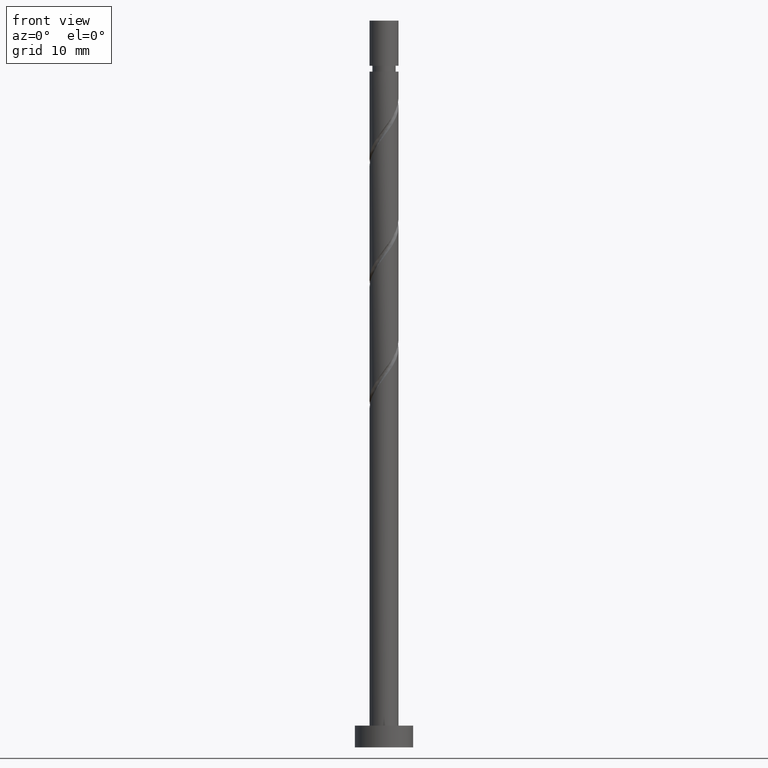
[diagram: clean part render]
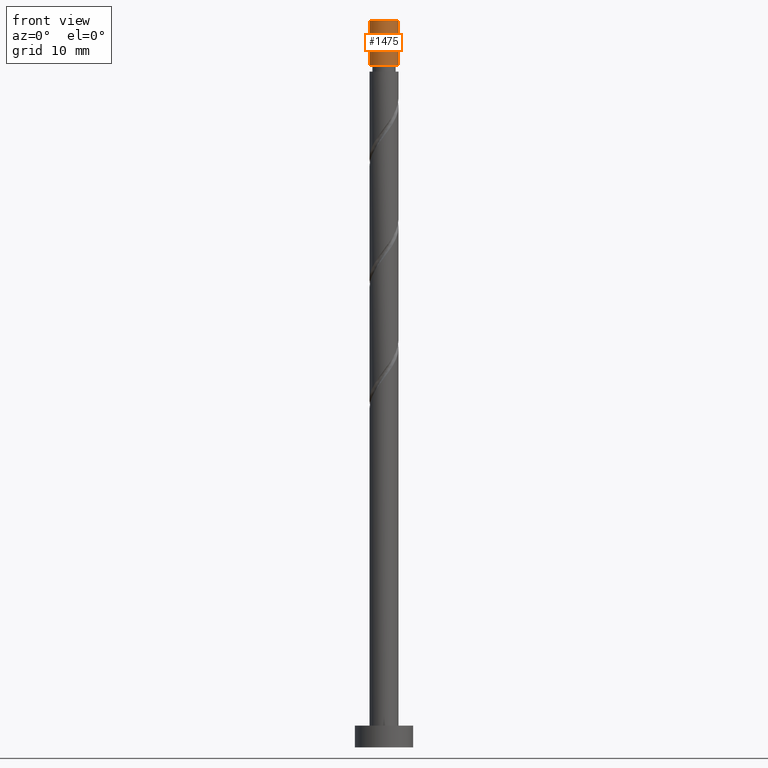
[diagram: same view with one face highlighted and labeled with its STEP entity id]
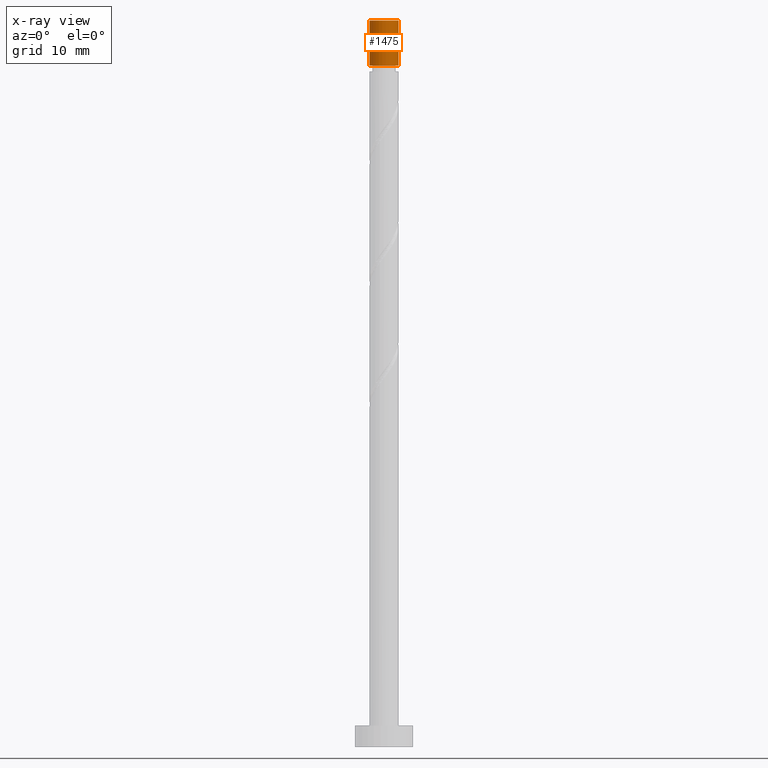
[diagram: x-ray of the same camera — body ghosted, the highlighted face saturated]
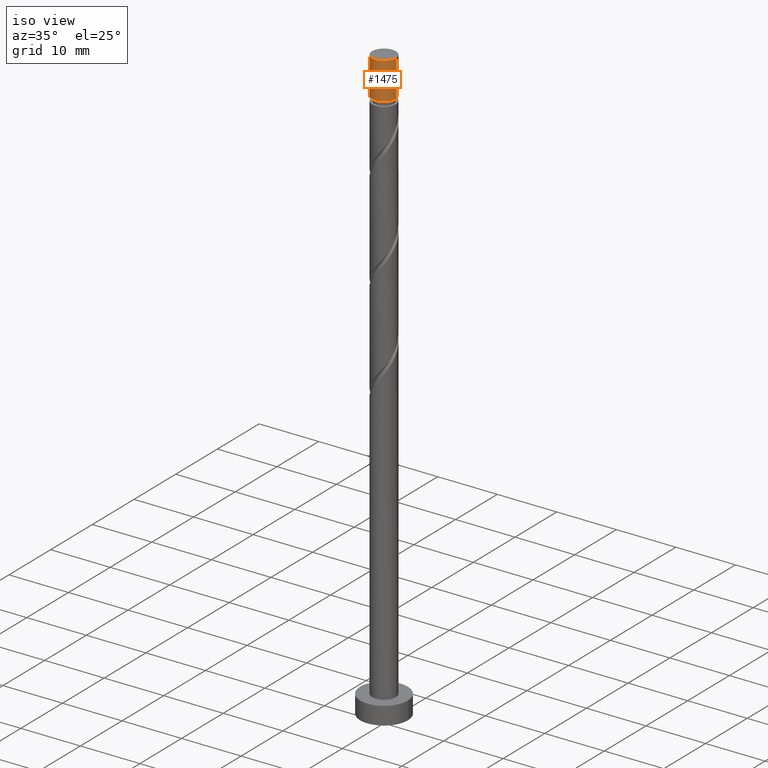
[diagram: same view with one face highlighted and labeled with its STEP entity id]
A machine part, front view. The second image highlights one B-rep face of the part: STEP entity #1475.
The next image is the same camera in x-ray: the body ghosted, the highlighted face saturated — about 0% of this face is hidden behind the body in this view.
A second angle (iso view) of the same face is appended — the face is thin or edge-on in the first view.
In plain terms, the highlighted cylindrical surface (edge-blend (fillet) strip) has radius 2 mm, axis along (-0, -0, -1).
Its self-contained STEP definition (entity closure, byte-faithful):
#7 = LINE ( 'NONE', #148, #1465 ) ;
#71 = CARTESIAN_POINT ( 'NONE',  ( 0.000000000000000000, 0.000000000000000000, 100.0000000000000000 ) ) ;
#97 = ORIENTED_EDGE ( 'NONE', *, *, #1265, .F. ) ;
#148 = CARTESIAN_POINT ( 'NONE',  ( -2.000000000000000000, 0.000000000000000000, 100.0000000000000000 ) ) ;
#159 = CARTESIAN_POINT ( 'NONE',  ( 0.000000000000000000, 0.000000000000000000, 93.78607412278005029 ) ) ;
#192 = CARTESIAN_POINT ( 'NONE',  ( 2.000000000000000000, 2.449293598294705921E-16, 100.0000000000000000 ) ) ;
#268 = DIRECTION ( 'NONE',  ( -1.000000000000000000, 0.000000000000000000, 0.000000000000000000 ) ) ;
#354 = ORIENTED_EDGE ( 'NONE', *, *, #1063, .T. ) ;
#361 = EDGE_CURVE ( 'NONE', #711, #1078, #530, .T. ) ;
#364 = DIRECTION ( 'NONE',  ( -0.000000000000000000, -0.000000000000000000, -1.000000000000000000 ) ) ;
#442 = AXIS2_PLACEMENT_3D ( 'NONE', #71, #1075, #634 ) ;
#530 = CIRCLE ( 'NONE', #1090, 2.000000000000000888 ) ;
#568 = EDGE_CURVE ( 'NONE', #938, #711, #1267, .T. ) ;
#634 = DIRECTION ( 'NONE',  ( 1.000000000000000000, 0.000000000000000000, 0.000000000000000000 ) ) ;
#667 = CYLINDRICAL_SURFACE ( 'NONE', #1112, 2.000000000000000000 ) ;
#679 = CARTESIAN_POINT ( 'NONE',  ( 2.000000000000000888, 2.449293598294706907E-16, 93.78607412278005029 ) ) ;
#711 = VERTEX_POINT ( 'NONE', #679 ) ;
#781 = DIRECTION ( 'NONE',  ( -1.000000000000000000, 0.000000000000000000, 0.000000000000000000 ) ) ;
#842 = DIRECTION ( 'NONE',  ( -0.000000000000000000, -0.000000000000000000, -1.000000000000000000 ) ) ;
#935 = CARTESIAN_POINT ( 'NONE',  ( -2.000000000000000888, 0.000000000000000000, 93.78607412278005029 ) ) ;
#938 = VERTEX_POINT ( 'NONE', #192 ) ;
#959 = EDGE_LOOP ( 'NONE', ( #1477, #97, #354, #1026 ) ) ;
#1026 = ORIENTED_EDGE ( 'NONE', *, *, #361, .F. ) ;
#1063 = EDGE_CURVE ( 'NONE', #1107, #1078, #7, .T. ) ;
#1075 = DIRECTION ( 'NONE',  ( 0.000000000000000000, 0.000000000000000000, 1.000000000000000000 ) ) ;
#1078 = VERTEX_POINT ( 'NONE', #935 ) ;
#1090 = AXIS2_PLACEMENT_3D ( 'NONE', #159, #1158, #268 ) ;
#1107 = VERTEX_POINT ( 'NONE', #1290 ) ;
#1112 = AXIS2_PLACEMENT_3D ( 'NONE', #1116, #1434, #781 ) ;
#1116 = CARTESIAN_POINT ( 'NONE',  ( 0.000000000000000000, 0.000000000000000000, 100.0000000000000000 ) ) ;
#1158 = DIRECTION ( 'NONE',  ( -0.000000000000000000, -0.000000000000000000, -1.000000000000000000 ) ) ;
#1232 = VECTOR ( 'NONE', #364, 1000.000000000000000 ) ;
#1265 = EDGE_CURVE ( 'NONE', #1107, #938, #1369, .T. ) ;
#1267 = LINE ( 'NONE', #1361, #1232 ) ;
#1290 = CARTESIAN_POINT ( 'NONE',  ( -2.000000000000000000, 0.000000000000000000, 100.0000000000000000 ) ) ;
#1357 = FACE_OUTER_BOUND ( 'NONE', #959, .T. ) ;
#1361 = CARTESIAN_POINT ( 'NONE',  ( 2.000000000000000000, 2.449293598294705921E-16, 100.0000000000000000 ) ) ;
#1369 = CIRCLE ( 'NONE', #442, 2.000000000000000000 ) ;
#1434 = DIRECTION ( 'NONE',  ( -0.000000000000000000, -0.000000000000000000, -1.000000000000000000 ) ) ;
#1465 = VECTOR ( 'NONE', #842, 1000.000000000000000 ) ;
#1475 = ADVANCED_FACE ( 'NONE', ( #1357 ), #667, .T. ) ;
#1477 = ORIENTED_EDGE ( 'NONE', *, *, #568, .F. ) ;